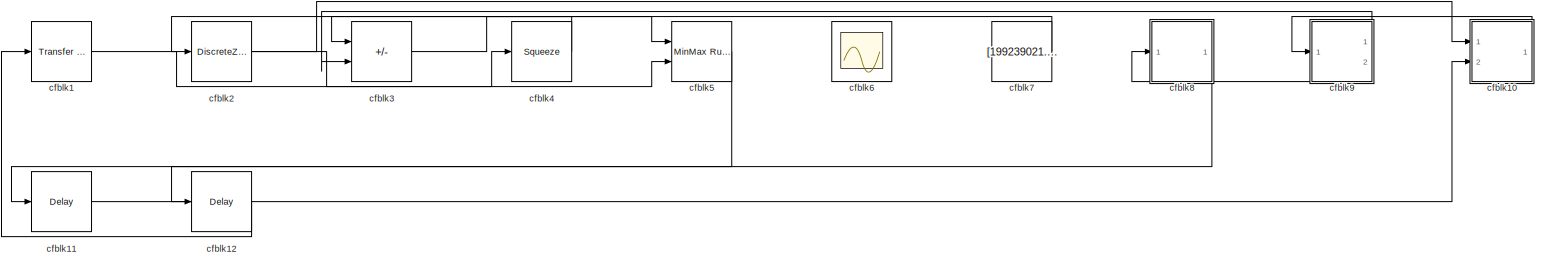
[diagram: root canvas - part 1/1, most of the canvas]
MODEL slx_226062bca53b
KIND model
CONFIG AbsTol = auto
CONFIG EnableMultiTasking = off
CONFIG FixedStep = auto
CONFIG MaxStep = auto
CONFIG MinStep = auto
CONFIG RelTol = 1e-3
CONFIG SampleTimeConstraint = Unconstrained
CONFIG SolverName = VariableStepAuto
CONFIG StartTime = 0.0
CONFIG StopTime = 10.0
BLOCK [Reference] cfblk1  REF=simulink/Discrete/Transfer Fcn
Lead or Lag
  Ports = [1, 1]
  SourceBlock = simulink/Discrete/Transfer Fcn\nLead or Lag
  SourceProductBaseCode = SL
  SourceType = Lead or Lag Compensator
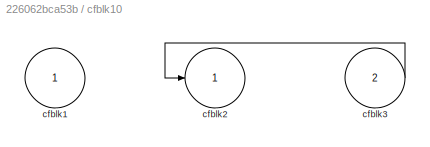
BLOCK [SubSystem] cfblk10
  Ports = [2, 1]
  RequestExecContextInheritance = off
BLOCK [Inport] cfblk10/cfblk1
BLOCK [Outport] cfblk10/cfblk2
BLOCK [Inport] cfblk10/cfblk3
  Port = 2
BLOCK [Delay] cfblk11
  InputPortMap = u0
  Ports = [1, 1]
  SampleTime = 1
BLOCK [Delay] cfblk12
  InputPortMap = u0
  Ports = [1, 1]
  SampleTime = 1
BLOCK [DiscreteZeroPole] cfblk2
  Gain = 1
  Poles = [0 0.5]
BLOCK [Sum] cfblk3
  IconShape = rectangular
  Inputs = +-
  Ports = [2, 1]
BLOCK [Squeeze] cfblk4
BLOCK [Reference] cfblk5  REF=simulink/Math
Operations/MinMax
Running
Resettable
  Ports = [2, 1]
  SourceBlock = simulink/Math\nOperations/MinMax\nRunning\nResettable
  SourceProductBaseCode = SL
  SourceType = MinMax Running Resettable
BLOCK [Scope] cfblk6
  Floating = on
  NumInputPorts = 1
  Ports = []
BLOCK [Constant] cfblk7
  SampleTime = 1
  Value = [199239021.580618]
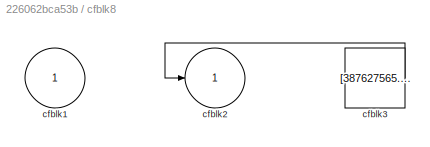
BLOCK [SubSystem] cfblk8
  Ports = [1, 1]
  RequestExecContextInheritance = off
BLOCK [Inport] cfblk8/cfblk1
BLOCK [Outport] cfblk8/cfblk2
BLOCK [Constant] cfblk8/cfblk3
  SampleTime = 1
  Value = [387627565.708280]
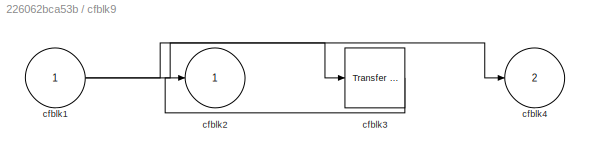
BLOCK [SubSystem] cfblk9
  Ports = [1, 2]
  RequestExecContextInheritance = off
BLOCK [Inport] cfblk9/cfblk1
BLOCK [Outport] cfblk9/cfblk2
BLOCK [Reference] cfblk9/cfblk3  REF=simulink/Discrete/Transfer Fcn
Real Zero
  Ports = [1, 1]
  SourceBlock = simulink/Discrete/Transfer Fcn\nReal Zero
  SourceProductBaseCode = SL
  SourceType = Transfer Fcn Real Zero
BLOCK [Outport] cfblk9/cfblk4
  Port = 2
LINE cfblk10/cfblk3:1 -> cfblk10/cfblk2:1
LINE cfblk10:1 -> cfblk9:1
LINE cfblk11:1 -> cfblk10:2
LINE cfblk12:1 -> cfblk1:1
LINE cfblk1:1 -> cfblk4:1
NET cfblk2:1 -> cfblk10:1, cfblk5:2
LINE cfblk3:1 -> cfblk5:1
LINE cfblk4:1 -> cfblk2:1
LINE cfblk5:1 -> cfblk11:1
LINE cfblk7:1 -> cfblk3:1
LINE cfblk8/cfblk3:1 -> cfblk8/cfblk2:1
LINE cfblk8:1 -> cfblk12:1
NET cfblk9/cfblk1:1 -> cfblk9/cfblk3:1, cfblk9/cfblk4:1
LINE cfblk9/cfblk3:1 -> cfblk9/cfblk2:1
LINE cfblk9:1 -> cfblk3:2
LINE cfblk9:2 -> cfblk8:1
note: NET lines group one-source signal fan-out (src -> all destinations, sorted); 1:1 wires keep LINE
